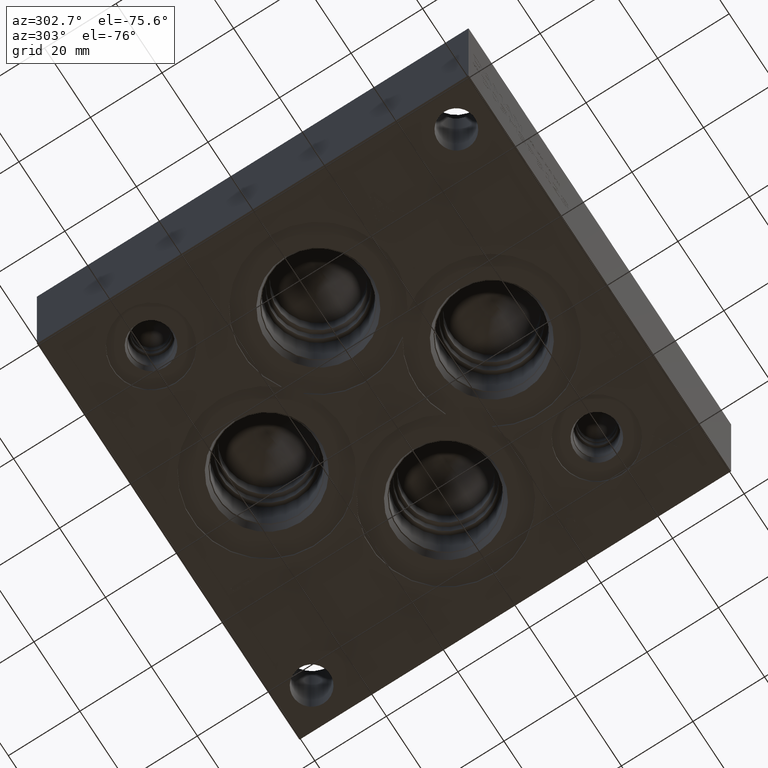
[diagram: clean part render]
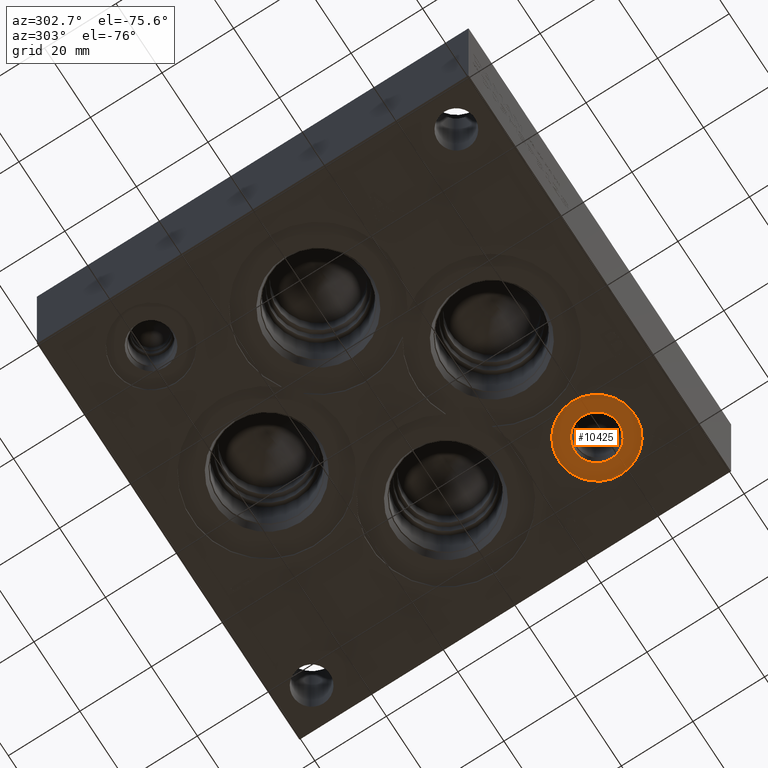
[diagram: same view with one face highlighted and labeled with its STEP entity id]
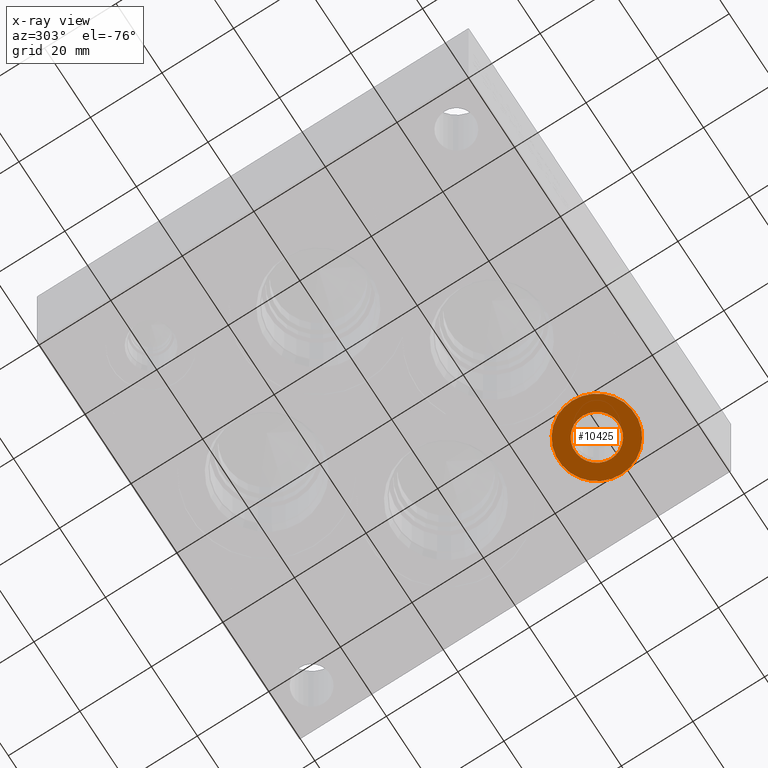
[diagram: x-ray of the same camera — body ghosted, the highlighted face saturated]
A machine part, auxiliary view. The second image highlights one B-rep face of the part: STEP entity #10425.
The next image is the same camera in x-ray: the body ghosted, the highlighted face saturated — about 0% of this face is hidden behind the body in this view.
In plain terms, the highlighted planar face has unit normal (0, 0, 1).
Its self-contained STEP definition (entity closure, byte-faithful):
#108=CIRCLE('',#10858,10.6426);
#109=CIRCLE('',#10859,10.6426);
#110=CIRCLE('',#10861,6.19759999999999);
#111=CIRCLE('',#10862,6.19759999999999);
#309=FACE_BOUND('',#1740,.T.);
#1160=FACE_OUTER_BOUND('',#1739,.T.);
#1739=EDGE_LOOP('',(#8736,#8737));
#1740=EDGE_LOOP('',(#8738,#8739));
#4721=VERTEX_POINT('',#17419);
#4722=VERTEX_POINT('',#17421);
#4723=VERTEX_POINT('',#17425);
#4724=VERTEX_POINT('',#17426);
#6102=EDGE_CURVE('',#4721,#4722,#108,.T.);
#6103=EDGE_CURVE('',#4722,#4721,#109,.T.);
#6104=EDGE_CURVE('',#4723,#4724,#110,.T.);
#6105=EDGE_CURVE('',#4724,#4723,#111,.T.);
#8736=ORIENTED_EDGE('',*,*,#6103,.F.);
#8737=ORIENTED_EDGE('',*,*,#6102,.F.);
#8738=ORIENTED_EDGE('',*,*,#6104,.T.);
#8739=ORIENTED_EDGE('',*,*,#6105,.T.);
#9548=PLANE('',#10860);
#10425=ADVANCED_FACE('',(#1160,#309),#9548,.F.);
#10858=AXIS2_PLACEMENT_3D('',#17422,#12689,#12690);
#10859=AXIS2_PLACEMENT_3D('',#17423,#12691,#12692);
#10860=AXIS2_PLACEMENT_3D('',#17424,#12693,#12694);
#10861=AXIS2_PLACEMENT_3D('',#17427,#12695,#12696);
#10862=AXIS2_PLACEMENT_3D('',#17428,#12697,#12698);
#12689=DIRECTION('center_axis',(0.,0.,1.));
#12690=DIRECTION('ref_axis',(1.,0.,0.));
#12691=DIRECTION('center_axis',(0.,0.,1.));
#12692=DIRECTION('ref_axis',(1.,0.,0.));
#12693=DIRECTION('center_axis',(0.,0.,1.));
#12694=DIRECTION('ref_axis',(1.,0.,0.));
#12695=DIRECTION('center_axis',(0.,0.,1.));
#12696=DIRECTION('ref_axis',(1.,0.,0.));
#12697=DIRECTION('center_axis',(0.,0.,1.));
#12698=DIRECTION('ref_axis',(1.,0.,0.));
#17419=CARTESIAN_POINT('',(79.8322,22.225,0.7874));
#17421=CARTESIAN_POINT('',(101.1174,22.225,0.7874));
#17422=CARTESIAN_POINT('Origin',(90.4748,22.225,0.7874));
#17423=CARTESIAN_POINT('Origin',(90.4748,22.225,0.7874));
#17424=CARTESIAN_POINT('Origin',(96.6724,22.225,0.7874));
#17425=CARTESIAN_POINT('',(96.6724,22.225,0.7874));
#17426=CARTESIAN_POINT('',(84.2772,22.225,0.787399999999998));
#17427=CARTESIAN_POINT('Origin',(90.4748,22.225,0.7874));
#17428=CARTESIAN_POINT('Origin',(90.4748,22.225,0.7874));